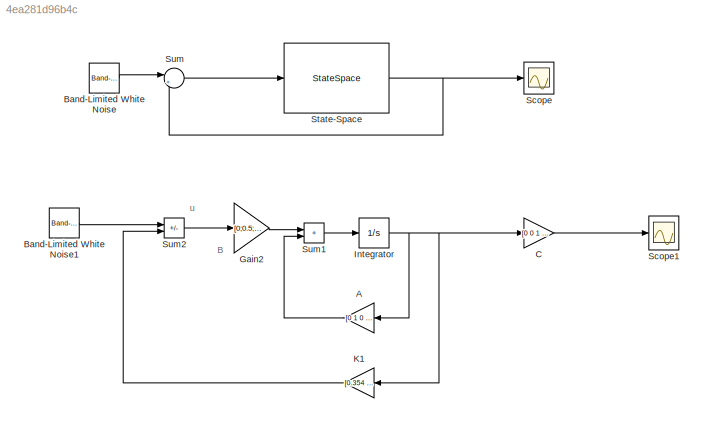
MODEL slx_4ea281d96b4c
KIND model
CONFIG AbsTol = auto
CONFIG EnableMultiTasking = off
CONFIG FixedStep = auto
CONFIG MaxStep = auto
CONFIG MinStep = auto
CONFIG RelTol = 1e-3
CONFIG SampleTimeConstraint = Unconstrained
CONFIG Solver = VariableStepAuto
CONFIG SolverName = VariableStepAuto
CONFIG StartTime = 0.0
CONFIG StopTime = 10.0
BLOCK [Gain] A
  Gain = [0 1 0 0 0 0;0 0 -0.98 0 0 0;0 0 0 1 0 0;0 0 205.8 0 -98 0;0 0 0 0 0 1;0 0 -196 0 196 0]
  Multiplication = Matrix(K*u)
BLOCK [Reference] Band-Limited White Noise  REF=simulink/Sources/Band-Limited
White Noise
  Commented = on
  Ports = [0, 1]
  SourceBlock = simulink/Sources/Band-Limited\nWhite Noise
  SourceProductBaseCode = SL
  SourceType = Band-Limited White Noise.
BLOCK [Reference] Band-Limited White Noise1  REF=simulink/Sources/Band-Limited
White Noise
  Ports = [0, 1]
  SourceBlock = simulink/Sources/Band-Limited\nWhite Noise
  SourceProductBaseCode = SL
  SourceType = Band-Limited White Noise.
BLOCK [Gain] C
  Gain = [0 0 1 0 0 0;0 0 0 0 1 0]
  Multiplication = Matrix(K*u)
BLOCK [Gain] Gain2
  Gain = [0;0.5;0;-5;0;0]
  Multiplication = Matrix(K*u)
BLOCK [Integrator] Integrator
  InitialCondition = zeros(6,1)
  Ports = [1, 1]
BLOCK [Gain] K1
  Gain = [0.354 0.5404 -116.4246 -3.846 98.1364 4.9612]
  Multiplication = Matrix(K*u)
BLOCK [Scope] Scope
  Commented = on
  Floating = off
  NumInputPorts = 1
  Ports = [1]
  ScopeSpecificationString = Simulink.scopes.TimeScopeBlockCfg('CurrentConfiguration', extmgr.ConfigurationSet(extmgr.Configuration('Core','General UI',true),extmgr.Configuration('Core','Source UI',true),extmgr.Configuration('Sources','WiredSimulink',true),extmgr.Configuration('Visuals','Time Domain',true),extmgr.Configuration('Tools','Plot Navigation',true),extmgr.Configuration('Tools','Measurements',true)),'Version','2021b'...<+1ch>
BLOCK [Scope] Scope1
  Floating = off
  NumInputPorts = 1
  Ports = [1]
  ScopeSpecificationString = Simulink.scopes.TimeScopeBlockCfg('CurrentConfiguration', extmgr.ConfigurationSet(extmgr.Configuration('Core','General UI',true,'FigureColor',[0.941176470588235 0.941176470588235 0.941176470588235]),extmgr.Configuration('Core','Source UI',true),extmgr.Configuration('Sources','WiredSimulink',true,'DataLoggingVariableName','ScopeData1','DataLoggingSaveFormat','StructureWithTime','DataLoggingLimitDat...<+2055ch>
BLOCK [StateSpace] State-Space
  A = [0 1 0 0 0 0;0 0 -0.98 0 0 0;0 0 0 1 0 0;0 0 205.8 0 -98 0;0 0 0 0 0 1;0 0 -196 0 196 0]
  B = [0;0.5;0;-5;0;0]
  C = [0 0 1 0 0 0;0 0 0 0 1 0]
  Commented = on
  D = [0;0]
  InitialCondition = 0
  Ports = [1, 1]
BLOCK [Sum] Sum
  Commented = on
  Inputs = |+-
  Ports = [2, 1]
BLOCK [Sum] Sum1
  IconShape = rectangular
  Ports = [2, 1]
BLOCK [Sum] Sum2
  IconShape = rectangular
  Inputs = +-
  Ports = [2, 1]
ANNOTATION (root): B
ANNOTATION (root): u
LINE A:1 -> Sum1:2
LINE Band-Limited White Noise1:1 -> Sum2:1
LINE Band-Limited White Noise:1 -> Sum:1
LINE C:1 -> Scope1:1
LINE Gain2:1 -> Sum1:1
NET Integrator:1 -> A:1, C:1, K1:1
LINE K1:1 -> Sum2:2
NET State-Space:1 -> Scope:1, Sum:2
LINE Sum1:1 -> Integrator:1
LINE Sum2:1 -> Gain2:1
LINE Sum:1 -> State-Space:1
note: NET lines group one-source signal fan-out (src -> all destinations, sorted); 1:1 wires keep LINE
